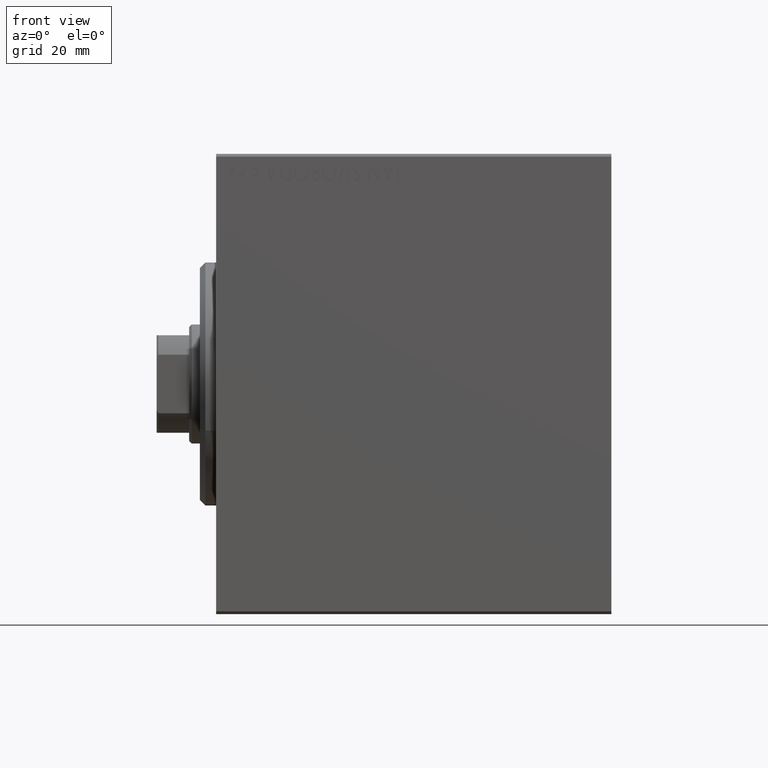
[diagram: clean part render]
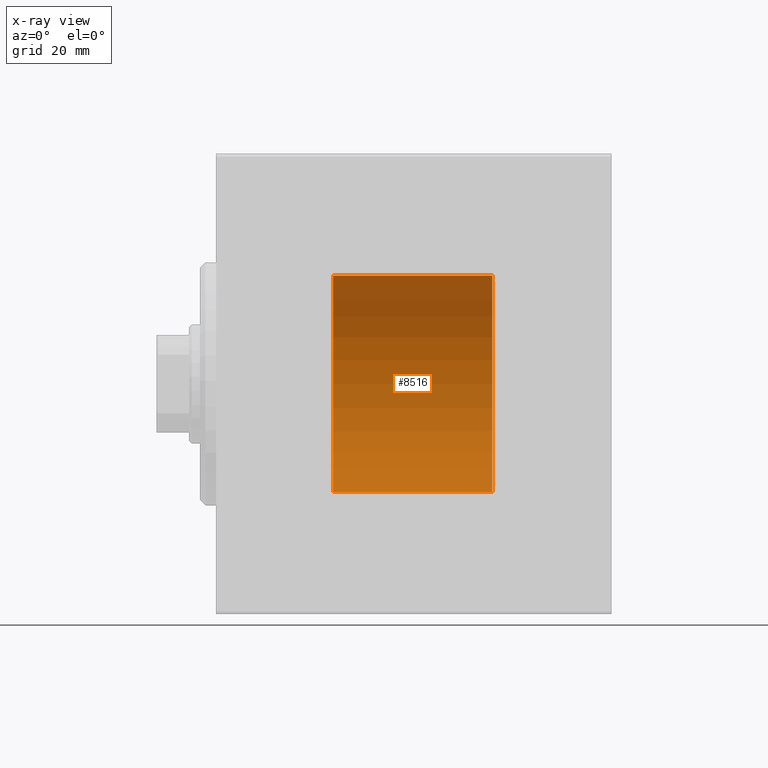
[diagram: x-ray — body ghosted, one internal face saturated and labeled with its STEP entity id]
A machine part, front view, then the same camera in x-ray: the body is ghosted and one INTERNAL B-rep face — a face not visible from any outside direction — is saturated and labeled: STEP entity #8516.
In plain terms, the highlighted cylindrical surface (partial cylindrical patch) has radius 20 mm, axis along (-1, -0, -0).
Its self-contained STEP definition (entity closure, byte-faithful):
#1620 = EDGE_CURVE ( 'NONE', #25991, #30244, #6844, .T. ) ;
#3664 = ORIENTED_EDGE ( 'NONE', *, *, #17077, .F. ) ;
#4896 = DIRECTION ( 'NONE',  ( 0.000000000000000000, 0.000000000000000000, 1.000000000000000000 ) ) ;
#6844 = LINE ( 'NONE', #20292, #14666 ) ;
#8516 = ADVANCED_FACE ( 'NONE', ( #13152 ), #19118, .F. ) ;
#8930 = CARTESIAN_POINT ( 'NONE',  ( 21.60000000000000142, 0.000000000000000000, 20.00000000000000000 ) ) ;
#10480 = VERTEX_POINT ( 'NONE', #22088 ) ;
#11047 = ORIENTED_EDGE ( 'NONE', *, *, #1620, .T. ) ;
#11613 = EDGE_CURVE ( 'NONE', #30244, #37643, #21943, .T. ) ;
#12819 = VECTOR ( 'NONE', #14067, 1000.000000000000000 ) ;
#13152 = FACE_OUTER_BOUND ( 'NONE', #16933, .T. ) ;
#14067 = DIRECTION ( 'NONE',  ( -1.000000000000000000, -0.000000000000000000, -0.000000000000000000 ) ) ;
#14666 = VECTOR ( 'NONE', #33799, 1000.000000000000000 ) ;
#16446 = CIRCLE ( 'NONE', #41192, 20.00000000000000000 ) ;
#16714 = ORIENTED_EDGE ( 'NONE', *, *, #21793, .F. ) ;
#16933 = EDGE_LOOP ( 'NONE', ( #3664, #16714, #11047, #40183 ) ) ;
#17077 = EDGE_CURVE ( 'NONE', #10480, #37643, #27756, .T. ) ;
#17942 = DIRECTION ( 'NONE',  ( -1.000000000000000000, 0.000000000000000000, 0.000000000000000000 ) ) ;
#19118 = CYLINDRICAL_SURFACE ( 'NONE', #34612, 20.00000000000000000 ) ;
#19814 = AXIS2_PLACEMENT_3D ( 'NONE', #28297, #32264, #4896 ) ;
#20292 = CARTESIAN_POINT ( 'NONE',  ( 51.00000000000000000, 0.000000000000000000, 20.00000000000000000 ) ) ;
#20806 = CARTESIAN_POINT ( 'NONE',  ( 51.00000000000000000, 0.000000000000000000, 0.000000000000000000 ) ) ;
#21793 = EDGE_CURVE ( 'NONE', #25991, #10480, #16446, .T. ) ;
#21943 = CIRCLE ( 'NONE', #19814, 20.00000000000000000 ) ;
#22063 = CARTESIAN_POINT ( 'NONE',  ( 51.00000000000000000, 0.000000000000000000, 20.00000000000000000 ) ) ;
#22088 = CARTESIAN_POINT ( 'NONE',  ( 51.00000000000000000, 2.449293598294706513E-15, -20.00000000000000000 ) ) ;
#25991 = VERTEX_POINT ( 'NONE', #22063 ) ;
#27756 = LINE ( 'NONE', #30433, #12819 ) ;
#28297 = CARTESIAN_POINT ( 'NONE',  ( 21.60000000000000142, 0.000000000000000000, 0.000000000000000000 ) ) ;
#30244 = VERTEX_POINT ( 'NONE', #8930 ) ;
#30433 = CARTESIAN_POINT ( 'NONE',  ( 51.00000000000000000, 2.449293598294706513E-15, -20.00000000000000000 ) ) ;
#30545 = CARTESIAN_POINT ( 'NONE',  ( 21.60000000000000142, 2.449293598294706513E-15, -20.00000000000000000 ) ) ;
#32264 = DIRECTION ( 'NONE',  ( -1.000000000000000000, 0.000000000000000000, 0.000000000000000000 ) ) ;
#33274 = DIRECTION ( 'NONE',  ( 0.000000000000000000, 0.000000000000000000, 1.000000000000000000 ) ) ;
#33799 = DIRECTION ( 'NONE',  ( -1.000000000000000000, -0.000000000000000000, -0.000000000000000000 ) ) ;
#34612 = AXIS2_PLACEMENT_3D ( 'NONE', #40149, #36824, #33274 ) ;
#36824 = DIRECTION ( 'NONE',  ( -1.000000000000000000, -0.000000000000000000, -0.000000000000000000 ) ) ;
#37643 = VERTEX_POINT ( 'NONE', #30545 ) ;
#40149 = CARTESIAN_POINT ( 'NONE',  ( 51.00000000000000000, 0.000000000000000000, 0.000000000000000000 ) ) ;
#40183 = ORIENTED_EDGE ( 'NONE', *, *, #11613, .T. ) ;
#41192 = AXIS2_PLACEMENT_3D ( 'NONE', #20806, #17942, #41408 ) ;
#41408 = DIRECTION ( 'NONE',  ( 0.000000000000000000, 0.000000000000000000, 1.000000000000000000 ) ) ;